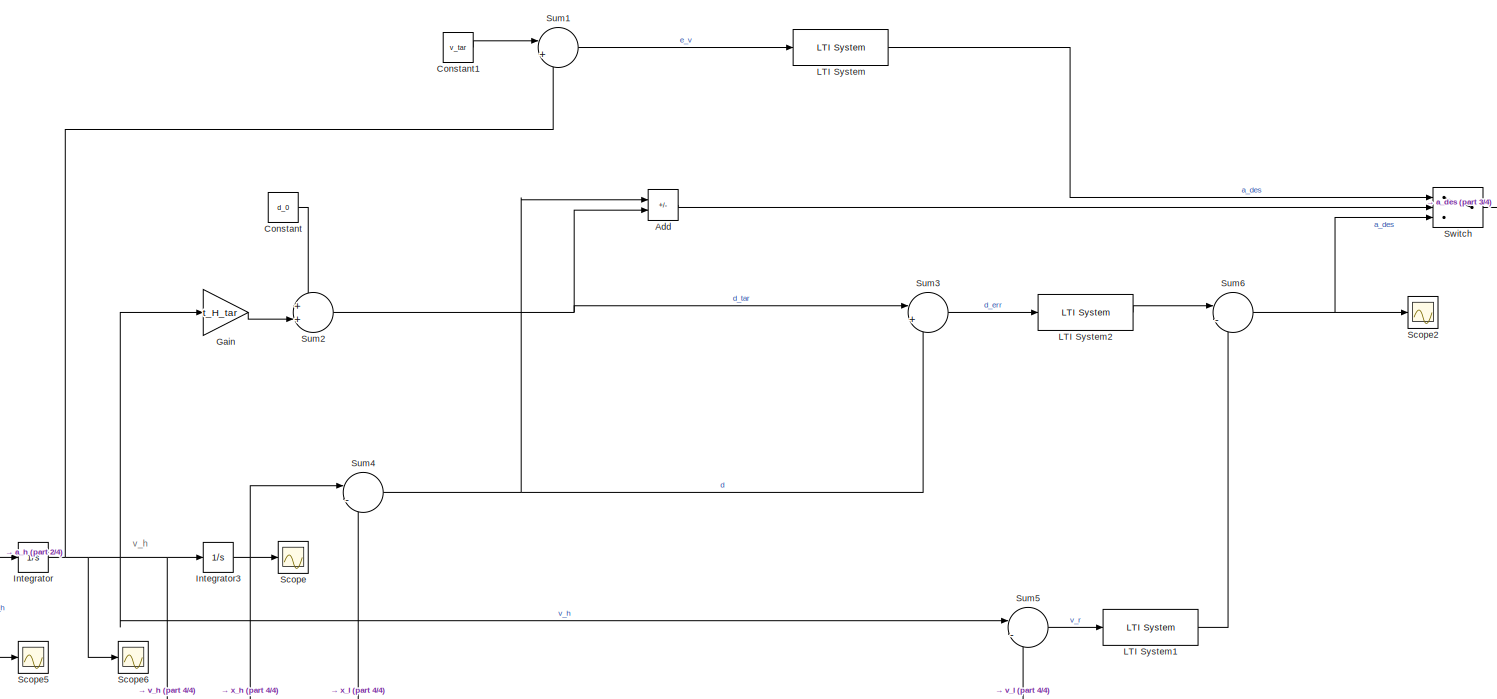
[diagram: root canvas - part 1/4, central region]
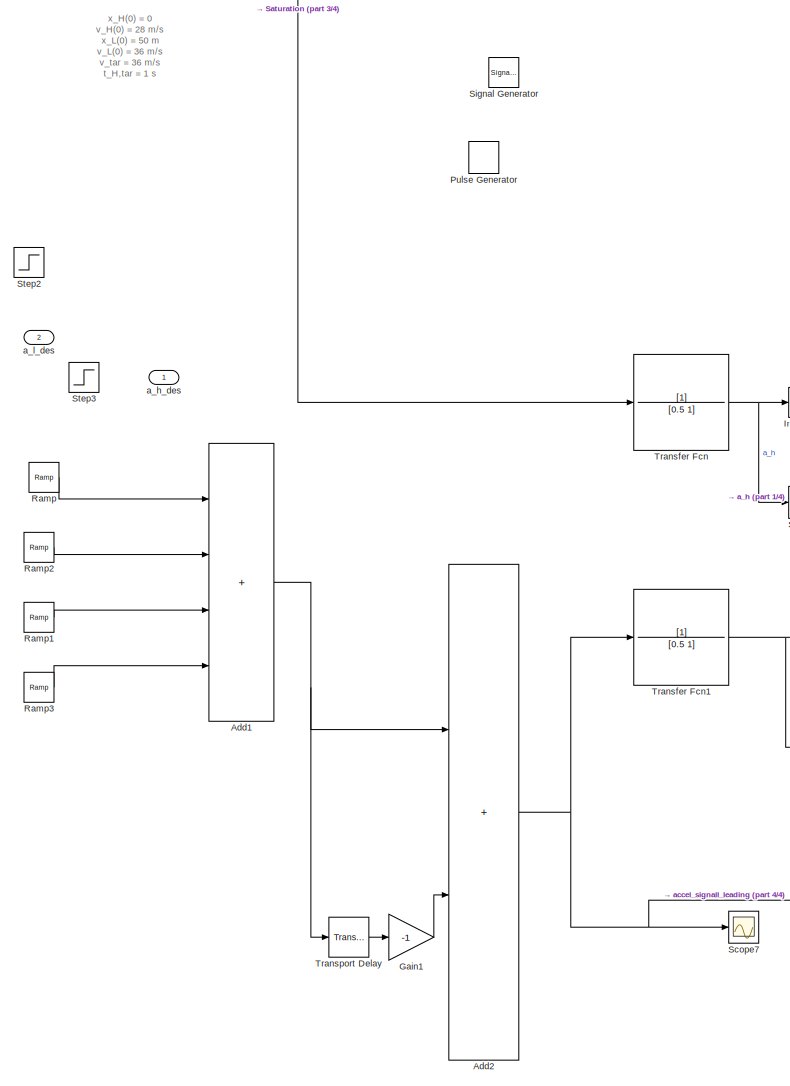
[diagram: root canvas - part 2/4, left side, full height]
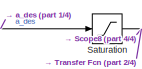
[diagram: root canvas - part 3/4, top right region]
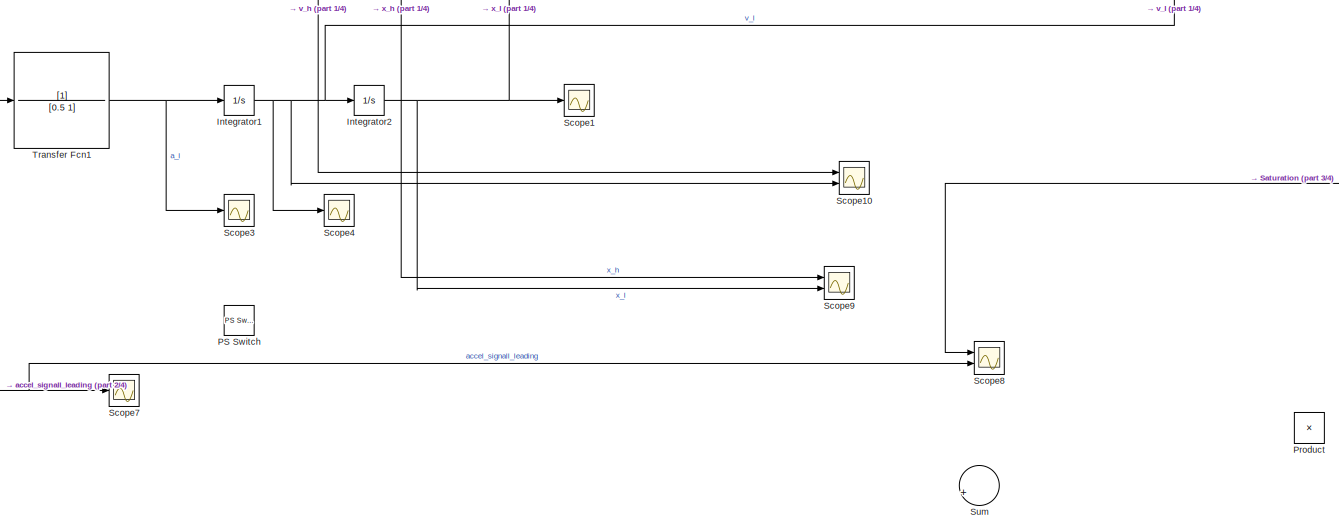
[diagram: root canvas - part 4/4, bottom center region]
MODEL slx_635b9b731b0d
KIND model
CONFIG AbsTol = auto
CONFIG EnableMultiTasking = off
CONFIG FixedStep = auto
CONFIG MaxStep = auto
CONFIG MinStep = auto
CONFIG RelTol = 1e-12
CONFIG SampleTimeConstraint = Unconstrained
CONFIG Solver = VariableStepAuto
CONFIG SolverName = VariableStepAuto
CONFIG StartTime = 0.0
CONFIG StopTime = 70
WORKSPACE source: MAT-file member
WORKSPACE d_tar = 20
BLOCK [Sum] Add
  IconShape = rectangular
  Inputs = +-
  Ports = [2, 1]
BLOCK [Sum] Add1
  IconShape = rectangular
  Inputs = ++++
  Ports = [4, 1]
BLOCK [Sum] Add2
  IconShape = rectangular
  Ports = [2, 1]
BLOCK [Constant] Constant
  Value = d_0
BLOCK [Constant] Constant1
  Value = v_tar
BLOCK [Gain] Gain
  Gain = t_H_tar
BLOCK [Gain] Gain1
  Gain = -1
BLOCK [Integrator] Integrator
  InitialCondition = v_H0
  Ports = [1, 1]
BLOCK [Integrator] Integrator1
  InitialCondition = v_L0
  Ports = [1, 1]
BLOCK [Integrator] Integrator2
  InitialCondition = x_L0
  Ports = [1, 1]
BLOCK [Integrator] Integrator3
  InitialCondition = x_H0
  Ports = [1, 1]
BLOCK [Reference] LTI System  REF=cstblocks/LTI System
  Ports = [1, 1]
  SourceBlock = cstblocks/LTI System
  SourceProductBaseCode = CT
  SourceType = LTI Block
BLOCK [Reference] LTI System1  REF=cstblocks/LTI System
  Ports = [1, 1]
  SourceBlock = cstblocks/LTI System
  SourceProductBaseCode = CT
  SourceType = LTI Block
BLOCK [Reference] LTI System2  REF=cstblocks/LTI System
  Ports = [1, 1]
  SourceBlock = cstblocks/LTI System
  SourceProductBaseCode = CT
  SourceType = LTI Block
BLOCK [Reference] PS Switch  REF=fl_lib/Physical Signals/Nonlinear Operators/PS Switch
  Ports = [0, 0, 0, 0, 0, 3, 1]
  SourceBlock = fl_lib/Physical Signals/Nonlinear Operators/PS Switch
  SourceProductBaseCode = SS
  SourceType = PS Switch
BLOCK [Product] Product
  Ports = [2, 1]
BLOCK [DiscretePulseGenerator] Pulse Generator
  Period = 10
  Ports = [0, 1]
  PulseType = Time based
  PulseWidth = 5
BLOCK [Reference] Ramp  REF=simulink/Sources/Ramp
  Ports = [0, 1]
  SourceBlock = simulink/Sources/Ramp
  SourceProductBaseCode = SL
  SourceType = Ramp
BLOCK [Reference] Ramp1  REF=simulink/Sources/Ramp
  Ports = [0, 1]
  SourceBlock = simulink/Sources/Ramp
  SourceProductBaseCode = SL
  SourceType = Ramp
BLOCK [Reference] Ramp2  REF=simulink/Sources/Ramp
  Ports = [0, 1]
  SourceBlock = simulink/Sources/Ramp
  SourceProductBaseCode = SL
  SourceType = Ramp
BLOCK [Reference] Ramp3  REF=simulink/Sources/Ramp
  Ports = [0, 1]
  SourceBlock = simulink/Sources/Ramp
  SourceProductBaseCode = SL
  SourceType = Ramp
BLOCK [Saturate] Saturation
  LowerLimit = -3
  UpperLimit = 5
BLOCK [Scope] Scope
  Floating = off
  NumInputPorts = 1
  Ports = [1]
  ScopeSpecificationString = Simulink.scopes.TimeScopeBlockCfg('CurrentConfiguration', extmgr.ConfigurationSet(extmgr.Configuration('Core','General UI',true),extmgr.Configuration('Core','Source UI',true),extmgr.Configuration('Sources','WiredSimulink',true),extmgr.Configuration('Visuals','Time Domain',true,'SerializedDisplays',{struct('MinYLimReal','-289.40886','MaxYLimReal','2604.67977','YLabelReal','','MinYLimMag',' 0.00000'...<+1370ch>
BLOCK [Scope] Scope1
  Floating = off
  NumInputPorts = 1
  Ports = [1]
  ScopeSpecificationString = Simulink.scopes.TimeScopeBlockCfg('CurrentConfiguration', extmgr.ConfigurationSet(extmgr.Configuration('Core','General UI',true),extmgr.Configuration('Core','Source UI',true),extmgr.Configuration('Sources','WiredSimulink',true,'DataLoggingVariableName','ScopeData1'),extmgr.Configuration('Visuals','Time Domain',true,'SerializedDisplays',{struct('MinYLimReal','-238.75','MaxYLimReal','2648.75','YLabe...<+1410ch>
BLOCK [Scope] Scope10
  Floating = off
  NumInputPorts = 2
  Ports = [2]
  ScopeSpecificationString = Simulink.scopes.TimeScopeBlockCfg('CurrentConfiguration', extmgr.ConfigurationSet(extmgr.Configuration('Core','General UI',true),extmgr.Configuration('Core','Source UI',true),extmgr.Configuration('Sources','WiredSimulink',true,'DataLoggingVariableName','ScopeData9'),extmgr.Configuration('Visuals','Time Domain',true,'SerializedDisplays',{struct('MinYLimReal','26.65988','MaxYLimReal','37.03779','YLa...<+1477ch>
BLOCK [Scope] Scope2
  Floating = off
  NumInputPorts = 1
  Ports = [1]
  ScopeSpecificationString = Simulink.scopes.TimeScopeBlockCfg('CurrentConfiguration', extmgr.ConfigurationSet(extmgr.Configuration('Core','General UI',true),extmgr.Configuration('Core','Source UI',true),extmgr.Configuration('Sources','WiredSimulink',true,'DataLoggingVariableName','ScopeData1'),extmgr.Configuration('Visuals','Time Domain',true,'SerializedDisplays',{struct('MinYLimReal','-4.34698','MaxYLimReal','7.52844','YLab...<+1364ch>
BLOCK [Scope] Scope3
  Floating = off
  NumInputPorts = 1
  Ports = [1]
  ScopeSpecificationString = Simulink.scopes.TimeScopeBlockCfg('CurrentConfiguration', extmgr.ConfigurationSet(extmgr.Configuration('Core','General UI',true),extmgr.Configuration('Core','Source UI',true),extmgr.Configuration('Sources','WiredSimulink',true,'DataLoggingVariableName','ScopeData2'),extmgr.Configuration('Visuals','Time Domain',true,'SerializedDisplays',{struct('MinYLimReal','-2.49768','MaxYLimReal','2.49763','YLab...<+1410ch>
BLOCK [Scope] Scope4
  Floating = off
  NumInputPorts = 1
  Ports = [1]
  ScopeSpecificationString = Simulink.scopes.TimeScopeBlockCfg('CurrentConfiguration', extmgr.ConfigurationSet(extmgr.Configuration('Core','General UI',true),extmgr.Configuration('Core','Source UI',true),extmgr.Configuration('Sources','WiredSimulink',true,'DataLoggingVariableName','ScopeData3'),extmgr.Configuration('Visuals','Time Domain',true,'SerializedDisplays',{struct('MinYLimReal','28.125','MaxYLimReal','36.875','YLabelR...<+1400ch>
BLOCK [Scope] Scope5
  Floating = off
  NumInputPorts = 1
  Ports = [1]
  ScopeSpecificationString = Simulink.scopes.TimeScopeBlockCfg('CurrentConfiguration', extmgr.ConfigurationSet(extmgr.Configuration('Core','General UI',true),extmgr.Configuration('Core','Source UI',true),extmgr.Configuration('Sources','WiredSimulink',true,'DataLoggingVariableName','ScopeData4'),extmgr.Configuration('Visuals','Time Domain',true,'SerializedDisplays',{struct('MinYLimReal','-10.61142','MaxYLimReal','7.4538','YLab...<+1408ch>
BLOCK [Scope] Scope6
  Floating = off
  NumInputPorts = 1
  Ports = [1]
  ScopeSpecificationString = Simulink.scopes.TimeScopeBlockCfg('CurrentConfiguration', extmgr.ConfigurationSet(extmgr.Configuration('Core','General UI',true),extmgr.Configuration('Core','Source UI',true),extmgr.Configuration('Sources','WiredSimulink',true,'DataLoggingVariableName','ScopeData5'),extmgr.Configuration('Visuals','Time Domain',true,'SerializedDisplays',{struct('MinYLimReal','19.10508','MaxYLimReal','37.87721','YLa...<+1416ch>
BLOCK [Scope] Scope7
  Floating = off
  NumInputPorts = 1
  Ports = [1]
  ScopeSpecificationString = Simulink.scopes.TimeScopeBlockCfg('CurrentConfiguration', extmgr.ConfigurationSet(extmgr.Configuration('Core','General UI',true),extmgr.Configuration('Core','Source UI',true),extmgr.Configuration('Sources','WiredSimulink',true,'DataLoggingVariableName','ScopeData6'),extmgr.Configuration('Visuals','Time Domain',true,'SerializedDisplays',{struct('MinYLimReal','-2.5','MaxYLimReal','2.5','YLabelReal',...<+1426ch>
BLOCK [Scope] Scope8
  Floating = off
  NumInputPorts = 2
  Ports = [2]
  ScopeSpecificationString = Simulink.scopes.TimeScopeBlockCfg('CurrentConfiguration', extmgr.ConfigurationSet(extmgr.Configuration('Core','General UI',true),extmgr.Configuration('Core','Source UI',true),extmgr.Configuration('Sources','WiredSimulink',true,'DataLoggingVariableName','ScopeData7'),extmgr.Configuration('Visuals','Time Domain',true,'SerializedDisplays',{struct('MinYLimReal','-3.875','MaxYLimReal','4.875','YLabelRe...<+1482ch>
BLOCK [Scope] Scope9
  Floating = off
  NumInputPorts = 2
  Ports = [2]
  ScopeSpecificationString = Simulink.scopes.TimeScopeBlockCfg('CurrentConfiguration', extmgr.ConfigurationSet(extmgr.Configuration('Core','General UI',true),extmgr.Configuration('Core','Source UI',true),extmgr.Configuration('Sources','WiredSimulink',true,'DataLoggingVariableName','ScopeData8'),extmgr.Configuration('Visuals','Time Domain',true,'SerializedDisplays',{struct('MinYLimReal','-295.00000','MaxYLimReal','2655.00000',...<+1463ch>
BLOCK [SignalGenerator] Signal Generator
  Ports = [0, 1]
  Units = rad/sec
BLOCK [Step] Step2
  After = 2
  SampleTime = 0
  Time = 40
BLOCK [Step] Step3
  After = -2
  SampleTime = 0
  Time = 43.5
BLOCK [Sum] Sum
  Inputs = |+-
  Ports = [2, 1]
BLOCK [Sum] Sum1
  Inputs = |+-
  Ports = [2, 1]
BLOCK [Sum] Sum2
  Inputs = ++|
  Ports = [2, 1]
BLOCK [Sum] Sum3
  Inputs = |+-
  Ports = [2, 1]
BLOCK [Sum] Sum4
  Inputs = |-+
  Ports = [2, 1]
BLOCK [Sum] Sum5
  Inputs = |-+
  Ports = [2, 1]
BLOCK [Sum] Sum6
  Inputs = |-+
  Ports = [2, 1]
BLOCK [Switch] Switch
  InputSameDT = off
  SaturateOnIntegerOverflow = off
BLOCK [TransferFcn] Transfer Fcn
  Denominator = [0.5 1]
BLOCK [TransferFcn] Transfer Fcn1
  Denominator = [0.5 1]
BLOCK [TransportDelay] Transport Delay
  DelayTime = 30
  Ports = [1, 1]
BLOCK [Inport] a_h_des
BLOCK [Inport] a_l_des
  Port = 2
ANNOTATION (root): x_H(0) = 0 v_H(0) = 28 m/s x_L(0) = 50 m v_L(0) = 36 m/s v_tar = 36 m/s t_H,tar = 1 s d_0 = 8 m K_v = 0.5 K_d,der = 0.2 K_v,r = 0.4 max a_des = 5 m/s^2 min a_des = -3 m/s^2
ANNOTATION (root): v_h
NET Add1:1 -> Add2:1, Transport Delay:1
NET Add2:1 -> Scope7:1, Scope8:2, Transfer Fcn1:1
LINE Add:1 -> Switch:2
LINE Constant1:1 -> Sum1:1
LINE Constant:1 -> Sum2:1
LINE Gain1:1 -> Add2:2
LINE Gain:1 -> Sum2:2
NET Integrator1:1 -> Integrator2:1, Scope10:2, Scope4:1, Sum5:2
NET Integrator2:1 -> Scope1:1, Scope9:2, Sum4:2
NET Integrator3:1 -> Scope9:1, Scope:1, Sum4:1
NET Integrator:1 -> Gain:1, Integrator3:1, Scope10:1, Scope6:1, Sum1:2, Sum5:1
LINE LTI System1:1 -> Sum6:2
LINE LTI System2:1 -> Sum6:1
LINE LTI System:1 -> Switch:1
LINE Ramp1:1 -> Add1:3
LINE Ramp2:1 -> Add1:2
LINE Ramp3:1 -> Add1:4
LINE Ramp:1 -> Add1:1
NET Saturation:1 -> Scope8:1, Transfer Fcn:1
LINE Sum1:1 -> LTI System:1
NET Sum2:1 -> Add:2, Sum3:1
LINE Sum3:1 -> LTI System2:1
NET Sum4:1 -> Add:1, Sum3:2
LINE Sum5:1 -> LTI System1:1
NET Sum6:1 -> Scope2:1, Switch:3
LINE Switch:1 -> Saturation:1
NET Transfer Fcn1:1 -> Integrator1:1, Scope3:1
NET Transfer Fcn:1 -> Integrator:1, Scope5:1
LINE Transport Delay:1 -> Gain1:1
note: NET lines group one-source signal fan-out (src -> all destinations, sorted); 1:1 wires keep LINE
